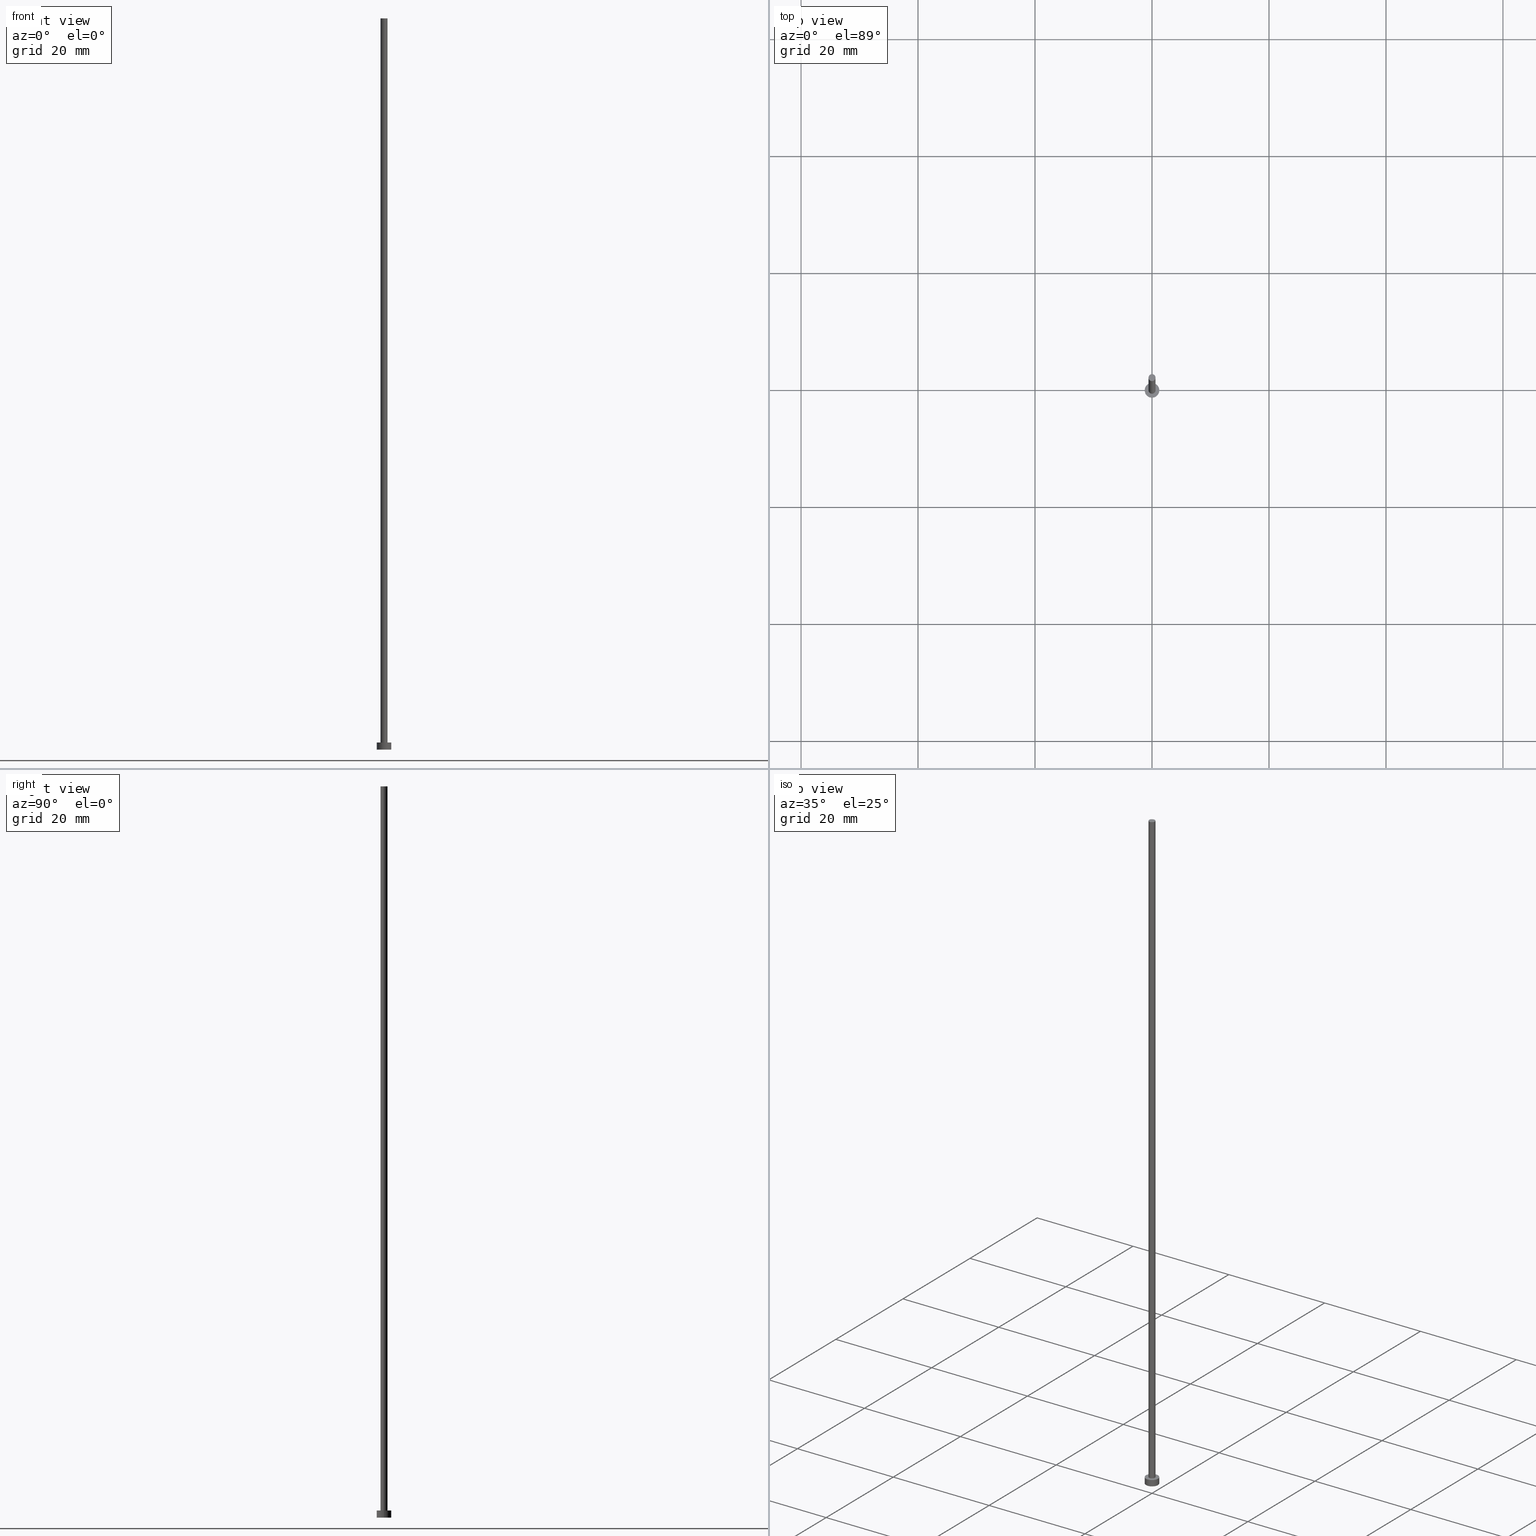
[diagram: canonical four-view strip — front | top / right | iso, engineering-drawing reading convention]
A machine part, canonical four-view strip (front | top / right | iso — engineering-drawing reading convention). The complete STEP part file that produces these views, byte-faithful:
ISO-10303-21;
HEADER;
FILE_DESCRIPTION (( 'STEP AP203' ),
    '1' );
FILE_NAME ('4eda.STEP',
    '2023-02-13T17:27:19',
    ( '' ),
    ( '' ),
    'SwSTEP 2.0',
    'SolidWorks 2019',
    '' );
FILE_SCHEMA (( 'CONFIG_CONTROL_DESIGN' ));
ENDSEC;

DATA;
#1 = DIRECTION ( 'NONE',  ( -0.000000000000000000, -0.000000000000000000, -1.000000000000000000 ) ) ;
#2 = CARTESIAN_POINT ( 'NONE',  ( -1.250000000000000000, 0.000000000000000000, 1.199999999999999956 ) ) ;
#3 = CC_DESIGN_APPROVAL ( #150, ( #95 ) ) ;
#4 = CARTESIAN_POINT ( 'NONE',  ( 1.250000000000000000, 1.530808498934191571E-16, 0.000000000000000000 ) ) ;
#5 = PERSON_AND_ORGANIZATION ( #16, #168 ) ;
#6 = PRODUCT ( '4eda', '4eda', '', ( #51 ) ) ;
#7 = CIRCLE ( 'NONE', #134, 0.5999999999999999778 ) ;
#8 = APPROVAL_DATE_TIME ( #106, #154 ) ;
#9 = CIRCLE ( 'NONE', #138, 1.250000000000000000 ) ;
#10 = APPROVAL ( #50, 'NEUR�EN�' ) ;
#11 = DIRECTION ( 'NONE',  ( 1.000000000000000000, 0.000000000000000000, 0.000000000000000000 ) ) ;
#12 = PERSON_AND_ORGANIZATION_ROLE ( 'creator' ) ;
#13 = AXIS2_PLACEMENT_3D ( 'NONE', #255, #157, #80 ) ;
#14 =( LENGTH_UNIT ( ) NAMED_UNIT ( * ) SI_UNIT ( .MILLI., .METRE. ) );
#15 = EDGE_CURVE ( 'NONE', #231, #153, #116, .T. ) ;
#16 = PERSON ( 'NEUR�EN�', 'NEUR�EN�', 'NEUR�EN�', ('NEUR�EN�'), ('NEUR�EN�'), ('NEUR�EN�') ) ;
#17 = ORIENTED_EDGE ( 'NONE', *, *, #15, .T. ) ;
#18 = ORIENTED_EDGE ( 'NONE', *, *, #146, .T. ) ;
#19 = EDGE_CURVE ( 'NONE', #94, #36, #7, .T. ) ;
#20 = ORIENTED_EDGE ( 'NONE', *, *, #166, .T. ) ;
#21 =( GEOMETRIC_REPRESENTATION_CONTEXT ( 3 ) GLOBAL_UNCERTAINTY_ASSIGNED_CONTEXT ( ( #130 ) ) GLOBAL_UNIT_ASSIGNED_CONTEXT ( ( #14, #70, #110 ) ) REPRESENTATION_CONTEXT ( 'NONE', 'WORKASPACE' ) );
#22 = ORIENTED_EDGE ( 'NONE', *, *, #232, .F. ) ;
#23 = CARTESIAN_POINT ( 'NONE',  ( -0.5999999999999999778, 0.000000000000000000, 125.0000000000000000 ) ) ;
#24 = LINE ( 'NONE', #102, #180 ) ;
#25 = CARTESIAN_POINT ( 'NONE',  ( 0.000000000000000000, 0.000000000000000000, 1.199999999999999956 ) ) ;
#26 = CYLINDRICAL_SURFACE ( 'NONE', #13, 0.5999999999999999778 ) ;
#27 = EDGE_CURVE ( 'NONE', #36, #229, #96, .T. ) ;
#28 = CARTESIAN_POINT ( 'NONE',  ( -0.5999999999999999778, 0.000000000000000000, 1.199999999999999956 ) ) ;
#29 = VECTOR ( 'NONE', #38, 1000.000000000000000 ) ;
#30 = CARTESIAN_POINT ( 'NONE',  ( -1.250000000000000000, 0.000000000000000000, 1.199999999999999956 ) ) ;
#31 = APPROVAL_ROLE ( '' ) ;
#32 = APPLICATION_PROTOCOL_DEFINITION ( 'international standard', 'config_control_design', 1994, #69 ) ;
#33 = VECTOR ( 'NONE', #220, 1000.000000000000000 ) ;
#34 = APPROVAL_ROLE ( '' ) ;
#35 = PERSON_AND_ORGANIZATION ( #16, #168 ) ;
#36 = VERTEX_POINT ( 'NONE', #132 ) ;
#37 = CIRCLE ( 'NONE', #67, 1.250000000000000000 ) ;
#38 = DIRECTION ( 'NONE',  ( -0.000000000000000000, -0.000000000000000000, -1.000000000000000000 ) ) ;
#39 = ORIENTED_EDGE ( 'NONE', *, *, #27, .F. ) ;
#40 = ORIENTED_EDGE ( 'NONE', *, *, #48, .T. ) ;
#41 = DIRECTION ( 'NONE',  ( 1.000000000000000000, 0.000000000000000000, 0.000000000000000000 ) ) ;
#42 = CARTESIAN_POINT ( 'NONE',  ( 0.000000000000000000, 0.000000000000000000, 1.199999999999999956 ) ) ;
#43 = VECTOR ( 'NONE', #123, 1000.000000000000000 ) ;
#44 = CC_DESIGN_SECURITY_CLASSIFICATION ( #73, ( #95 ) ) ;
#45 = CARTESIAN_POINT ( 'NONE',  ( 0.000000000000000000, 0.000000000000000000, 125.0000000000000000 ) ) ;
#46 = CYLINDRICAL_SURFACE ( 'NONE', #83, 1.250000000000000000 ) ;
#47 = CARTESIAN_POINT ( 'NONE',  ( 1.250000000000000000, 1.530808498934191571E-16, 1.199999999999999956 ) ) ;
#48 = EDGE_CURVE ( 'NONE', #36, #94, #98, .T. ) ;
#49 = LOCAL_TIME ( 18, 27, 19.00000000000000000, #248 ) ;
#50 = APPROVAL_STATUS ( 'not_yet_approved' ) ;
#51 = MECHANICAL_CONTEXT ( 'NONE', #192, 'mechanical' ) ;
#52 = COORDINATED_UNIVERSAL_TIME_OFFSET ( 1, 0, .AHEAD. ) ;
#53 = DATE_AND_TIME ( #145, #109 ) ;
#54 = CARTESIAN_POINT ( 'NONE',  ( 0.000000000000000000, 0.000000000000000000, 0.000000000000000000 ) ) ;
#55 = LOCAL_TIME ( 18, 27, 19.00000000000000000, #52 ) ;
#56 = DIRECTION ( 'NONE',  ( 1.000000000000000000, 0.000000000000000000, 0.000000000000000000 ) ) ;
#57 = CARTESIAN_POINT ( 'NONE',  ( 0.000000000000000000, 0.000000000000000000, 125.0000000000000000 ) ) ;
#58 = DIRECTION ( 'NONE',  ( -1.000000000000000000, 0.000000000000000000, 0.000000000000000000 ) ) ;
#59 = LOCAL_TIME ( 18, 27, 19.00000000000000000, #186 ) ;
#60 = ORIENTED_EDGE ( 'NONE', *, *, #224, .T. ) ;
#61 = CARTESIAN_POINT ( 'NONE',  ( 0.000000000000000000, 0.000000000000000000, 1.199999999999999956 ) ) ;
#62 = DIRECTION ( 'NONE',  ( 0.000000000000000000, 0.000000000000000000, 1.000000000000000000 ) ) ;
#63 = ADVANCED_FACE ( 'NONE', ( #250 ), #75, .T. ) ;
#64 = FACE_OUTER_BOUND ( 'NONE', #254, .T. ) ;
#65 = FACE_OUTER_BOUND ( 'NONE', #152, .T. ) ;
#66 = DIRECTION ( 'NONE',  ( -1.000000000000000000, 0.000000000000000000, 0.000000000000000000 ) ) ;
#67 = AXIS2_PLACEMENT_3D ( 'NONE', #61, #182, #181 ) ;
#68 = DATE_AND_TIME ( #188, #49 ) ;
#69 = APPLICATION_CONTEXT ( 'configuration controlled 3d designs of mechanical parts and assemblies' ) ;
#70 =( NAMED_UNIT ( * ) PLANE_ANGLE_UNIT ( ) SI_UNIT ( $, .RADIAN. ) );
#71 = PERSON_AND_ORGANIZATION_ROLE ( 'classification_officer' ) ;
#72 = DIRECTION ( 'NONE',  ( 0.000000000000000000, 0.000000000000000000, 1.000000000000000000 ) ) ;
#73 = SECURITY_CLASSIFICATION ( '', '', #246 ) ;
#74 = ORIENTED_EDGE ( 'NONE', *, *, #206, .T. ) ;
#75 = CYLINDRICAL_SURFACE ( 'NONE', #217, 0.5999999999999999778 ) ;
#76 = EDGE_LOOP ( 'NONE', ( #172, #119, #178, #195 ) ) ;
#77 = CARTESIAN_POINT ( 'NONE',  ( 0.000000000000000000, 0.000000000000000000, 125.0000000000000000 ) ) ;
#78 = AXIS2_PLACEMENT_3D ( 'NONE', #45, #202, #241 ) ;
#79 = CC_DESIGN_APPROVAL ( #154, ( #73 ) ) ;
#80 = DIRECTION ( 'NONE',  ( -1.000000000000000000, 0.000000000000000000, 0.000000000000000000 ) ) ;
#81 = DIRECTION ( 'NONE',  ( -0.000000000000000000, -0.000000000000000000, -1.000000000000000000 ) ) ;
#82 = DIRECTION ( 'NONE',  ( 1.000000000000000000, 0.000000000000000000, -0.000000000000000000 ) ) ;
#83 = AXIS2_PLACEMENT_3D ( 'NONE', #124, #214, #160 ) ;
#84 = FACE_OUTER_BOUND ( 'NONE', #147, .T. ) ;
#85 = CARTESIAN_POINT ( 'NONE',  ( 0.000000000000000000, 0.000000000000000000, 0.000000000000000000 ) ) ;
#86 = DATE_AND_TIME ( #208, #88 ) ;
#87 = AXIS2_PLACEMENT_3D ( 'NONE', #85, #62, #99 ) ;
#88 = LOCAL_TIME ( 18, 27, 19.00000000000000000, #245 ) ;
#89 = SHAPE_DEFINITION_REPRESENTATION ( #171, #92 ) ;
#90 = DATE_AND_TIME ( #128, #55 ) ;
#91 = DATE_TIME_ROLE ( 'creation_date' ) ;
#92 = ADVANCED_BREP_SHAPE_REPRESENTATION ( '4eda', ( #240, #175 ), #21 ) ;
#93 = ORIENTED_EDGE ( 'NONE', *, *, #15, .F. ) ;
#94 = VERTEX_POINT ( 'NONE', #23 ) ;
#95 = PRODUCT_DEFINITION_FORMATION_WITH_SPECIFIED_SOURCE ( 'LIBOVOLN�', '', #6, .NOT_KNOWN. ) ;
#96 = LINE ( 'NONE', #191, #29 ) ;
#97 = ORIENTED_EDGE ( 'NONE', *, *, #239, .F. ) ;
#98 = CIRCLE ( 'NONE', #167, 0.5999999999999999778 ) ;
#99 = DIRECTION ( 'NONE',  ( 1.000000000000000000, 0.000000000000000000, 0.000000000000000000 ) ) ;
#100 = ADVANCED_FACE ( 'NONE', ( #105 ), #104, .T. ) ;
#101 = AXIS2_PLACEMENT_3D ( 'NONE', #244, #81, #66 ) ;
#102 = CARTESIAN_POINT ( 'NONE',  ( 1.250000000000000000, 1.530808498934191571E-16, 1.199999999999999956 ) ) ;
#103 = FACE_OUTER_BOUND ( 'NONE', #76, .T. ) ;
#104 = PLANE ( 'NONE',  #78 ) ;
#105 = FACE_OUTER_BOUND ( 'NONE', #149, .T. ) ;
#106 = DATE_AND_TIME ( #189, #59 ) ;
#107 = DATE_TIME_ROLE ( 'classification_date' ) ;
#108 = CIRCLE ( 'NONE', #87, 1.250000000000000000 ) ;
#109 = LOCAL_TIME ( 18, 27, 19.00000000000000000, #169 ) ;
#110 =( NAMED_UNIT ( * ) SI_UNIT ( $, .STERADIAN. ) SOLID_ANGLE_UNIT ( ) );
#111 = PERSON_AND_ORGANIZATION ( #16, #168 ) ;
#112 = APPROVAL_STATUS ( 'not_yet_approved' ) ;
#113 = ORIENTED_EDGE ( 'NONE', *, *, #19, .F. ) ;
#114 = DESIGN_CONTEXT ( 'detailed design', #69, 'design' ) ;
#115 = ORIENTED_EDGE ( 'NONE', *, *, #224, .F. ) ;
#116 = CIRCLE ( 'NONE', #174, 1.250000000000000000 ) ;
#117 = EDGE_LOOP ( 'NONE', ( #39, #113, #20, #18 ) ) ;
#118 = CC_DESIGN_PERSON_AND_ORGANIZATION_ASSIGNMENT ( #165, #71, ( #73 ) ) ;
#119 = ORIENTED_EDGE ( 'NONE', *, *, #239, .T. ) ;
#120 = FACE_BOUND ( 'NONE', #230, .T. ) ;
#121 = ADVANCED_FACE ( 'NONE', ( #64 ), #26, .T. ) ;
#122 = PLANE ( 'NONE',  #203 ) ;
#123 = DIRECTION ( 'NONE',  ( -0.000000000000000000, -0.000000000000000000, -1.000000000000000000 ) ) ;
#124 = CARTESIAN_POINT ( 'NONE',  ( 0.000000000000000000, 0.000000000000000000, 1.199999999999999956 ) ) ;
#125 = CARTESIAN_POINT ( 'NONE',  ( 0.5999999999999999778, 7.347880794884117764E-17, 1.199999999999999956 ) ) ;
#126 = PERSON_AND_ORGANIZATION ( #16, #168 ) ;
#127 = PERSON_AND_ORGANIZATION ( #16, #168 ) ;
#128 = CALENDAR_DATE ( 2023, 13, 2 ) ;
#129 = PERSON_AND_ORGANIZATION ( #16, #168 ) ;
#130 = UNCERTAINTY_MEASURE_WITH_UNIT (LENGTH_MEASURE( 1.000000000000000082E-05 ), #14, 'distance_accuracy_value', 'NONE');
#131 = DIRECTION ( 'NONE',  ( 0.000000000000000000, 0.000000000000000000, 1.000000000000000000 ) ) ;
#132 = CARTESIAN_POINT ( 'NONE',  ( 0.5999999999999999778, 7.347880794884117764E-17, 125.0000000000000000 ) ) ;
#133 = ORIENTED_EDGE ( 'NONE', *, *, #166, .F. ) ;
#134 = AXIS2_PLACEMENT_3D ( 'NONE', #253, #131, #210 ) ;
#135 = VERTEX_POINT ( 'NONE', #30 ) ;
#136 = ADVANCED_FACE ( 'NONE', ( #65 ), #122, .F. ) ;
#137 = LINE ( 'NONE', #155, #43 ) ;
#138 = AXIS2_PLACEMENT_3D ( 'NONE', #216, #139, #219 ) ;
#139 = DIRECTION ( 'NONE',  ( 0.000000000000000000, 0.000000000000000000, 1.000000000000000000 ) ) ;
#140 = DIRECTION ( 'NONE',  ( 0.000000000000000000, 0.000000000000000000, 1.000000000000000000 ) ) ;
#141 = CC_DESIGN_PERSON_AND_ORGANIZATION_ASSIGNMENT ( #161, #12, ( #95 ) ) ;
#142 = CARTESIAN_POINT ( 'NONE',  ( 0.000000000000000000, 0.000000000000000000, 0.000000000000000000 ) ) ;
#143 = CC_DESIGN_DATE_AND_TIME_ASSIGNMENT ( #68, #91, ( #209 ) ) ;
#144 = PERSON_AND_ORGANIZATION_ROLE ( 'creator' ) ;
#145 = CALENDAR_DATE ( 2023, 13, 2 ) ;
#146 = EDGE_CURVE ( 'NONE', #213, #229, #222, .T. ) ;
#147 = EDGE_LOOP ( 'NONE', ( #177, #74 ) ) ;
#148 = AXIS2_PLACEMENT_3D ( 'NONE', #201, #218, #198 ) ;
#149 = EDGE_LOOP ( 'NONE', ( #211, #40 ) ) ;
#150 = APPROVAL ( #227, 'NEUR�EN�' ) ;
#151 = DIRECTION ( 'NONE',  ( 1.000000000000000000, 0.000000000000000000, 0.000000000000000000 ) ) ;
#152 = EDGE_LOOP ( 'NONE', ( #93, #235 ) ) ;
#153 = VERTEX_POINT ( 'NONE', #4 ) ;
#154 = APPROVAL ( #112, 'NEUR�EN�' ) ;
#155 = CARTESIAN_POINT ( 'NONE',  ( -0.5999999999999999778, 0.000000000000000000, 125.0000000000000000 ) ) ;
#156 = CARTESIAN_POINT ( 'NONE',  ( -1.250000000000000000, 0.000000000000000000, 0.000000000000000000 ) ) ;
#157 = DIRECTION ( 'NONE',  ( -0.000000000000000000, -0.000000000000000000, -1.000000000000000000 ) ) ;
#158 = EDGE_CURVE ( 'NONE', #153, #231, #108, .T. ) ;
#159 = PLANE ( 'NONE',  #251 ) ;
#160 = DIRECTION ( 'NONE',  ( -1.000000000000000000, 0.000000000000000000, 0.000000000000000000 ) ) ;
#161 = PERSON_AND_ORGANIZATION ( #16, #168 ) ;
#162 = PRODUCT_RELATED_PRODUCT_CATEGORY ( 'detail', '', ( #6 ) ) ;
#163 = APPROVAL_PERSON_ORGANIZATION ( #5, #10, #34 ) ;
#164 = APPROVAL_DATE_TIME ( #90, #10 ) ;
#165 = PERSON_AND_ORGANIZATION ( #16, #168 ) ;
#166 = EDGE_CURVE ( 'NONE', #94, #213, #137, .T. ) ;
#167 = AXIS2_PLACEMENT_3D ( 'NONE', #77, #176, #151 ) ;
#168 = ORGANIZATION ( 'NEUR�EN�', 'NEUR�EN�', '' ) ;
#169 = COORDINATED_UNIVERSAL_TIME_OFFSET ( 1, 0, .AHEAD. ) ;
#170 = CC_DESIGN_PERSON_AND_ORGANIZATION_ASSIGNMENT ( #127, #204, ( #95 ) ) ;
#171 = PRODUCT_DEFINITION_SHAPE ( 'NONE', 'NONE',  #209 ) ;
#172 = ORIENTED_EDGE ( 'NONE', *, *, #206, .F. ) ;
#173 = DIRECTION ( 'NONE',  ( 0.000000000000000000, 0.000000000000000000, 1.000000000000000000 ) ) ;
#174 = AXIS2_PLACEMENT_3D ( 'NONE', #54, #173, #56 ) ;
#175 = AXIS2_PLACEMENT_3D ( 'NONE', #142, #72, #11 ) ;
#176 = DIRECTION ( 'NONE',  ( 0.000000000000000000, 0.000000000000000000, 1.000000000000000000 ) ) ;
#177 = ORIENTED_EDGE ( 'NONE', *, *, #232, .T. ) ;
#178 = ORIENTED_EDGE ( 'NONE', *, *, #158, .T. ) ;
#179 = DIRECTION ( 'NONE',  ( 0.000000000000000000, 0.000000000000000000, 1.000000000000000000 ) ) ;
#180 = VECTOR ( 'NONE', #1, 1000.000000000000000 ) ;
#181 = DIRECTION ( 'NONE',  ( 1.000000000000000000, 0.000000000000000000, 0.000000000000000000 ) ) ;
#182 = DIRECTION ( 'NONE',  ( 0.000000000000000000, 0.000000000000000000, 1.000000000000000000 ) ) ;
#183 = CARTESIAN_POINT ( 'NONE',  ( 0.000000000000000000, 0.000000000000000000, 0.000000000000000000 ) ) ;
#184 = APPROVAL_PERSON_ORGANIZATION ( #35, #154, #223 ) ;
#185 = DIRECTION ( 'NONE',  ( 1.000000000000000000, 0.000000000000000000, -0.000000000000000000 ) ) ;
#186 = COORDINATED_UNIVERSAL_TIME_OFFSET ( 1, 0, .AHEAD. ) ;
#187 = PERSON_AND_ORGANIZATION_ROLE ( 'design_owner' ) ;
#188 = CALENDAR_DATE ( 2023, 13, 2 ) ;
#189 = CALENDAR_DATE ( 2023, 13, 2 ) ;
#190 = CLOSED_SHELL ( 'NONE', ( #121, #221, #193, #236, #136, #63, #100 ) ) ;
#191 = CARTESIAN_POINT ( 'NONE',  ( 0.5999999999999999778, 7.347880794884117764E-17, 125.0000000000000000 ) ) ;
#192 = APPLICATION_CONTEXT ( 'configuration controlled 3d designs of mechanical parts and assemblies' ) ;
#193 = ADVANCED_FACE ( 'NONE', ( #237 ), #46, .T. ) ;
#194 = EDGE_LOOP ( 'NONE', ( #97, #22, #197, #17 ) ) ;
#195 = ORIENTED_EDGE ( 'NONE', *, *, #243, .F. ) ;
#196 = ORIENTED_EDGE ( 'NONE', *, *, #27, .T. ) ;
#197 = ORIENTED_EDGE ( 'NONE', *, *, #243, .T. ) ;
#198 = DIRECTION ( 'NONE',  ( 1.000000000000000000, 0.000000000000000000, 0.000000000000000000 ) ) ;
#199 = DIRECTION ( 'NONE',  ( 0.000000000000000000, 0.000000000000000000, 1.000000000000000000 ) ) ;
#200 = APPROVAL_PERSON_ORGANIZATION ( #126, #150, #31 ) ;
#201 = CARTESIAN_POINT ( 'NONE',  ( 0.000000000000000000, 0.000000000000000000, 1.199999999999999956 ) ) ;
#202 = DIRECTION ( 'NONE',  ( 0.000000000000000000, 0.000000000000000000, 1.000000000000000000 ) ) ;
#203 = AXIS2_PLACEMENT_3D ( 'NONE', #183, #199, #185 ) ;
#204 = PERSON_AND_ORGANIZATION_ROLE ( 'design_supplier' ) ;
#205 = APPLICATION_PROTOCOL_DEFINITION ( 'international standard', 'config_control_design', 1994, #192 ) ;
#206 = EDGE_CURVE ( 'NONE', #249, #135, #37, .T. ) ;
#207 = CC_DESIGN_APPROVAL ( #10, ( #209 ) ) ;
#208 = CALENDAR_DATE ( 2023, 13, 2 ) ;
#209 = PRODUCT_DEFINITION ( 'NEZN�M�', '', #95, #114 ) ;
#210 = DIRECTION ( 'NONE',  ( 1.000000000000000000, 0.000000000000000000, 0.000000000000000000 ) ) ;
#211 = ORIENTED_EDGE ( 'NONE', *, *, #19, .T. ) ;
#212 = ORIENTED_EDGE ( 'NONE', *, *, #48, .F. ) ;
#213 = VERTEX_POINT ( 'NONE', #28 ) ;
#214 = DIRECTION ( 'NONE',  ( -0.000000000000000000, -0.000000000000000000, -1.000000000000000000 ) ) ;
#215 = CC_DESIGN_PERSON_AND_ORGANIZATION_ASSIGNMENT ( #129, #187, ( #6 ) ) ;
#216 = CARTESIAN_POINT ( 'NONE',  ( 0.000000000000000000, 0.000000000000000000, 1.199999999999999956 ) ) ;
#217 = AXIS2_PLACEMENT_3D ( 'NONE', #57, #233, #58 ) ;
#218 = DIRECTION ( 'NONE',  ( 0.000000000000000000, 0.000000000000000000, 1.000000000000000000 ) ) ;
#219 = DIRECTION ( 'NONE',  ( 1.000000000000000000, 0.000000000000000000, 0.000000000000000000 ) ) ;
#220 = DIRECTION ( 'NONE',  ( -0.000000000000000000, -0.000000000000000000, -1.000000000000000000 ) ) ;
#221 = ADVANCED_FACE ( 'NONE', ( #103 ), #242, .T. ) ;
#222 = CIRCLE ( 'NONE', #148, 0.5999999999999999778 ) ;
#223 = APPROVAL_ROLE ( '' ) ;
#224 = EDGE_CURVE ( 'NONE', #229, #213, #247, .T. ) ;
#225 = APPROVAL_DATE_TIME ( #86, #150 ) ;
#226 = CC_DESIGN_PERSON_AND_ORGANIZATION_ASSIGNMENT ( #111, #144, ( #209 ) ) ;
#227 = APPROVAL_STATUS ( 'not_yet_approved' ) ;
#228 = CC_DESIGN_DATE_AND_TIME_ASSIGNMENT ( #53, #107, ( #73 ) ) ;
#229 = VERTEX_POINT ( 'NONE', #125 ) ;
#230 = EDGE_LOOP ( 'NONE', ( #252, #115 ) ) ;
#231 = VERTEX_POINT ( 'NONE', #156 ) ;
#232 = EDGE_CURVE ( 'NONE', #135, #249, #9, .T. ) ;
#233 = DIRECTION ( 'NONE',  ( -0.000000000000000000, -0.000000000000000000, -1.000000000000000000 ) ) ;
#234 = AXIS2_PLACEMENT_3D ( 'NONE', #25, #179, #41 ) ;
#235 = ORIENTED_EDGE ( 'NONE', *, *, #158, .F. ) ;
#236 = ADVANCED_FACE ( 'NONE', ( #120, #84 ), #159, .T. ) ;
#237 = FACE_OUTER_BOUND ( 'NONE', #194, .T. ) ;
#238 = LINE ( 'NONE', #2, #33 ) ;
#239 = EDGE_CURVE ( 'NONE', #249, #153, #24, .T. ) ;
#240 = MANIFOLD_SOLID_BREP ( 'P�idat vysunut�m3', #190 ) ;
#241 = DIRECTION ( 'NONE',  ( 1.000000000000000000, 0.000000000000000000, -0.000000000000000000 ) ) ;
#242 = CYLINDRICAL_SURFACE ( 'NONE', #101, 1.250000000000000000 ) ;
#243 = EDGE_CURVE ( 'NONE', #135, #231, #238, .T. ) ;
#244 = CARTESIAN_POINT ( 'NONE',  ( 0.000000000000000000, 0.000000000000000000, 1.199999999999999956 ) ) ;
#245 = COORDINATED_UNIVERSAL_TIME_OFFSET ( 1, 0, .AHEAD. ) ;
#246 = SECURITY_CLASSIFICATION_LEVEL ( 'unclassified' ) ;
#247 = CIRCLE ( 'NONE', #234, 0.5999999999999999778 ) ;
#248 = COORDINATED_UNIVERSAL_TIME_OFFSET ( 1, 0, .AHEAD. ) ;
#249 = VERTEX_POINT ( 'NONE', #47 ) ;
#250 = FACE_OUTER_BOUND ( 'NONE', #117, .T. ) ;
#251 = AXIS2_PLACEMENT_3D ( 'NONE', #42, #140, #82 ) ;
#252 = ORIENTED_EDGE ( 'NONE', *, *, #146, .F. ) ;
#253 = CARTESIAN_POINT ( 'NONE',  ( 0.000000000000000000, 0.000000000000000000, 125.0000000000000000 ) ) ;
#254 = EDGE_LOOP ( 'NONE', ( #212, #196, #60, #133 ) ) ;
#255 = CARTESIAN_POINT ( 'NONE',  ( 0.000000000000000000, 0.000000000000000000, 125.0000000000000000 ) ) ;
ENDSEC;
END-ISO-10303-21;
